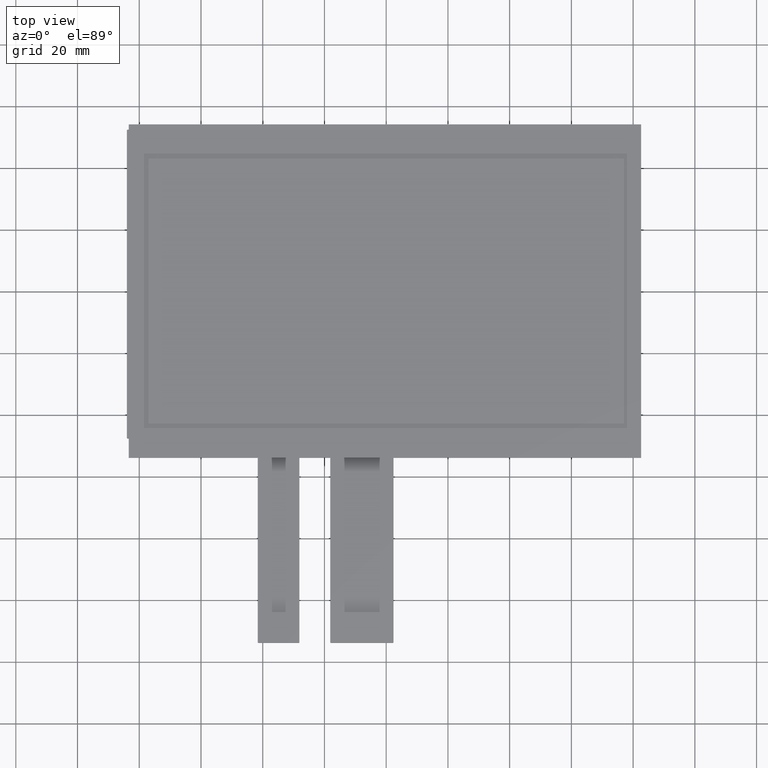
[diagram: clean part render]
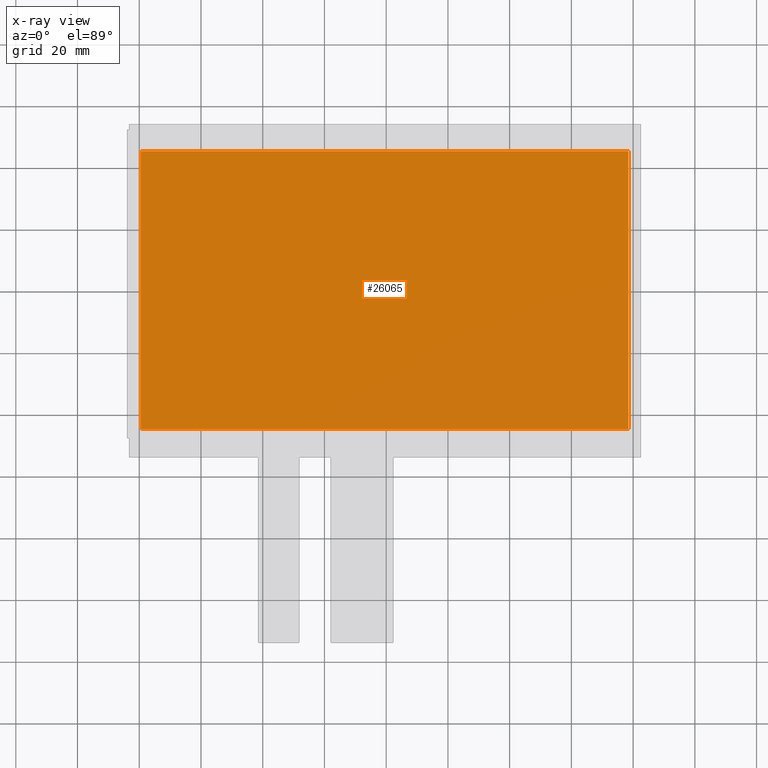
[diagram: x-ray — body ghosted, one internal face saturated and labeled with its STEP entity id]
A machine part, top view, then the same camera in x-ray: the body is ghosted and one INTERNAL B-rep face — a face not visible from any outside direction — is saturated and labeled: STEP entity #26065.
In plain terms, the highlighted planar face has unit normal (0, 0, -1).
Its self-contained STEP definition (entity closure, byte-faithful):
#795=FACE_OUTER_BOUND('',#2173,.T.);
#2173=EDGE_LOOP('',(#17181,#17182,#17183,#17184));
#3674=LINE('',#36532,#7144);
#3678=LINE('',#36541,#7148);
#3680=LINE('',#36544,#7150);
#3681=LINE('',#36546,#7151);
#7144=VECTOR('',#29389,10.);
#7148=VECTOR('',#29395,10.);
#7150=VECTOR('',#29399,10.);
#7151=VECTOR('',#29402,10.);
#10589=VERTEX_POINT('',#36525);
#10592=VERTEX_POINT('',#36530);
#10593=VERTEX_POINT('',#36534);
#10596=VERTEX_POINT('',#36539);
#13186=EDGE_CURVE('',#10589,#10592,#3674,.T.);
#13190=EDGE_CURVE('',#10593,#10596,#3678,.T.);
#13192=EDGE_CURVE('',#10592,#10593,#3680,.T.);
#13193=EDGE_CURVE('',#10596,#10589,#3681,.T.);
#17181=ORIENTED_EDGE('',*,*,#13193,.T.);
#17182=ORIENTED_EDGE('',*,*,#13186,.T.);
#17183=ORIENTED_EDGE('',*,*,#13192,.T.);
#17184=ORIENTED_EDGE('',*,*,#13190,.T.);
#24903=PLANE('',#27464);
#26065=ADVANCED_FACE('',(#795),#24903,.T.);
#27464=AXIS2_PLACEMENT_3D('',#36545,#29400,#29401);
#29389=DIRECTION('',(1.,-2.68609529715486E-49,0.));
#29395=DIRECTION('',(-1.,2.42592844682388E-49,0.));
#29399=DIRECTION('',(-2.60166850330933E-50,-1.,0.));
#29400=DIRECTION('center_axis',(0.,0.,-1.));
#29401=DIRECTION('ref_axis',(1.,0.,0.));
#29402=DIRECTION('',(2.68609529715486E-49,1.,0.));
#36525=CARTESIAN_POINT('',(-79.5149999999993,45.3597566730076,-2.35));
#36530=CARTESIAN_POINT('',(78.4850000000004,45.3597566730067,-2.35));
#36532=CARTESIAN_POINT('',(39.0425000000002,45.3597566730067,-2.35));
#36534=CARTESIAN_POINT('',(78.485,-44.6402433269934,-2.35));
#36539=CARTESIAN_POINT('',(-79.515,-44.6402433269934,-2.35));
#36541=CARTESIAN_POINT('',(-39.9575,-44.6402433269934,-2.35));
#36544=CARTESIAN_POINT('',(78.485,-22.3202433269934,-2.35));
#36545=CARTESIAN_POINT('Origin',(-0.399999999999991,-0.000243326993412118,
-2.35));
#36546=CARTESIAN_POINT('',(-79.5149999999993,-23.3202433269929,-2.35));